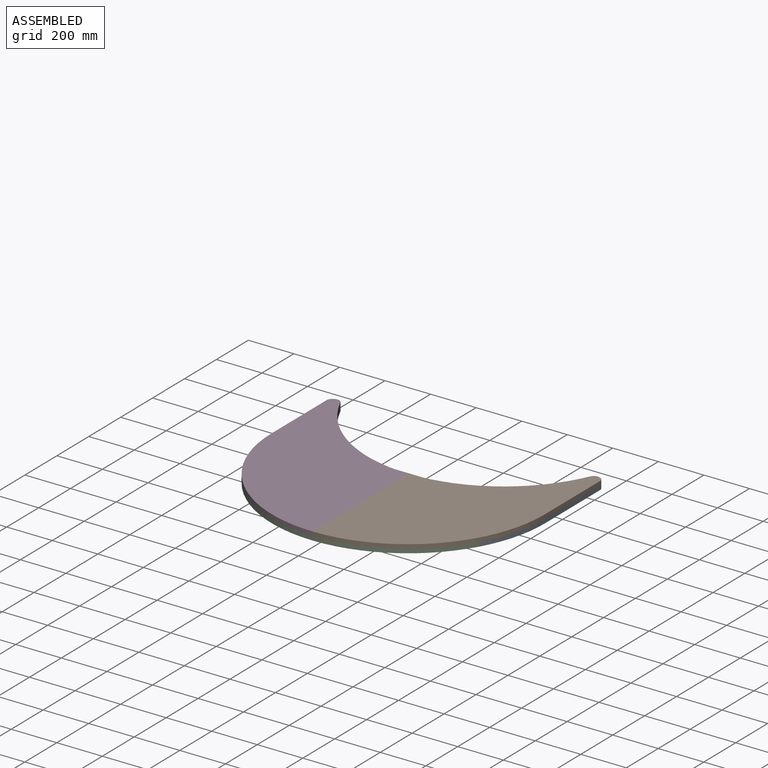
[diagram: assembled view]
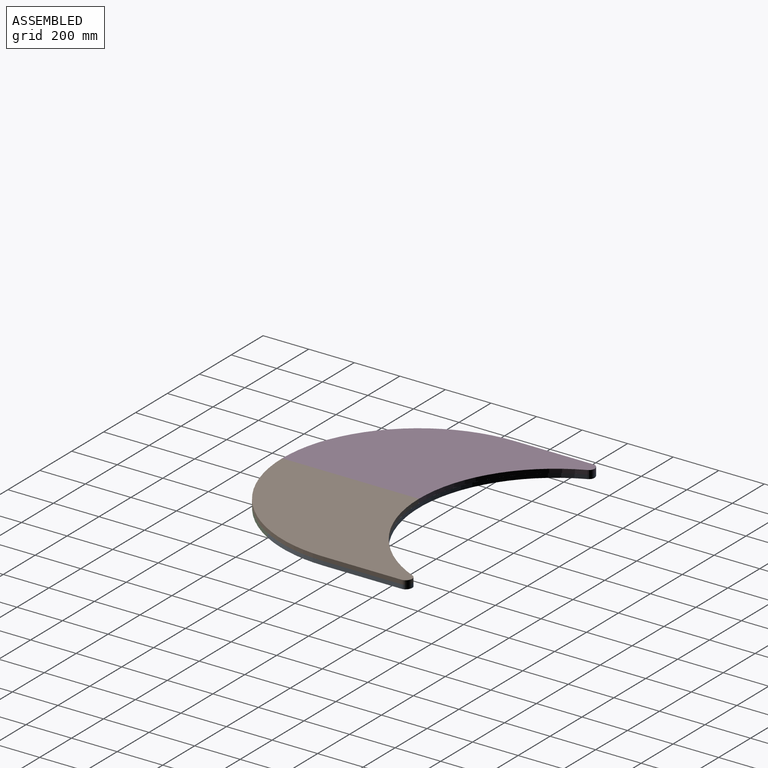
[diagram: assembled view, second angle]
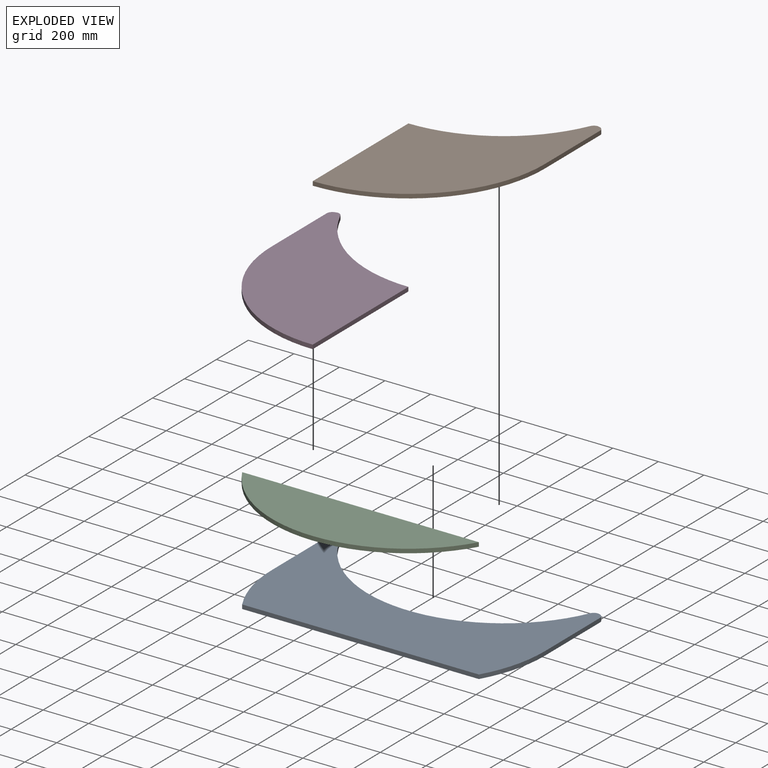
[diagram: exploded view]
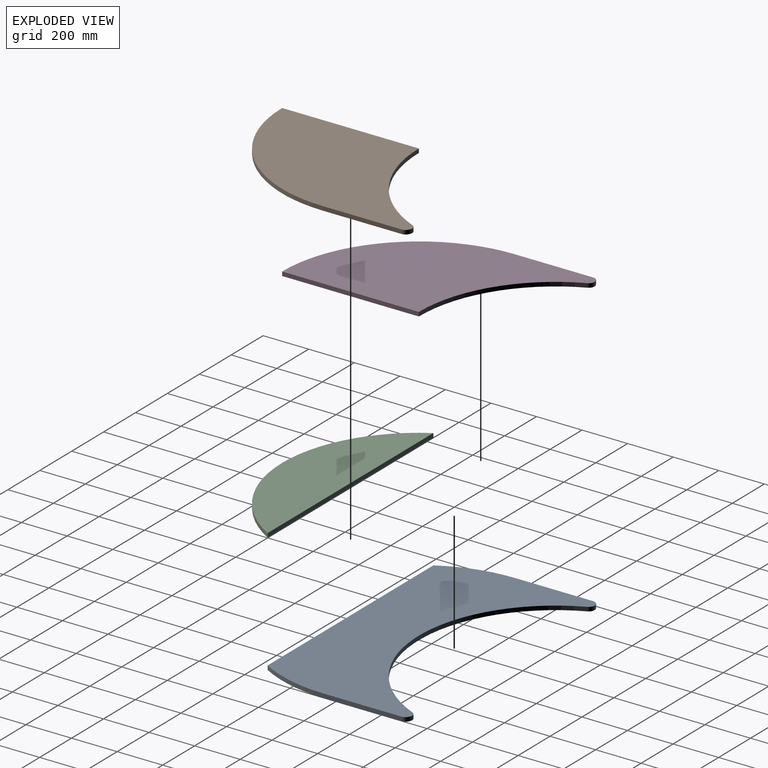
[diagram: exploded view, second angle]
ASSEMBLY  parts=4 mates=3
PART A: 14 faces, bbox 1200x671.4x18 mm
  f0: cylinder r=600mm len=300.21mm, axis (0,0,-1), area 5659.2mm2, adj f1,f11,f12,f13
  f1: plane 1038.99x18mm, normal (0,-1,0), area 18701.8mm2, adj f0,f2,f12,f13
  f2: cylinder r=600mm len=300.21mm, axis (0,0,-1), area 5659.2mm2, adj f1,f3,f12,f13
  f3: plane 344.69x18mm, normal (1,0,0), area 6204.5mm2, adj f2,f4,f12,f13
  f4: cylinder r=25mm len=23.23mm, axis (0,0,-1), area 536.7mm2, adj f3,f5,f12,f13
  f5: plane 18x3.84mm, normal (0.37,0.93,0), area 74.4mm2, adj f4,f6,f12,f13
  f6: cylinder r=25mm len=32.08mm, axis (0,0,-1), area 688.9mm2, adj f5,f7,f12,f13
  f7: cylinder r=600mm len=1096.62mm, axis (0,0,-1), area 24897.7mm2, adj f6,f8,f12,f13
  f8: cylinder r=25mm len=32.08mm, axis (0,0,-1), area 688.9mm2, adj f7,f9,f12,f13
  f9: plane 18x3.84mm, normal (-0.37,0.93,0), area 74.4mm2, adj f8,f10,f12,f13
  f10: cylinder r=25mm len=23.23mm, axis (0,0,-1), area 536.7mm2, adj f9,f11,f12,f13
  f11: plane 344.69x18mm, normal (-1,0,0), area 6204.5mm2, adj f0,f10,f12,f13
  f12: plane 1200x671.43mm, normal (0,0,1), area 491876mm2, adj f0,f1,f2,f3,f4,f5,f6,f7
  f13: plane 1200x671.43mm, normal (0,0,-1), area 491876mm2, adj f0,f1,f2,f3,f4,f5,f6,f7
PART B: 9 faces, bbox 600x971.2x18 mm
  f0: cylinder r=600mm len=548.31mm, axis (0,0,-1), area 12448.8mm2, adj f1,f6,f7,f8
  f1: plane 600x18mm, normal (-1,0,0), area 10800mm2, adj f0,f2,f7,f8
  f2: cylinder r=600mm len=600mm, axis (0,0,-1), area 16964.6mm2, adj f1,f3,f7,f8
  f3: plane 344.69x18mm, normal (1,0,0), area 6204.5mm2, adj f2,f4,f7,f8
  f4: cylinder r=25mm len=23.23mm, axis (0,0,-1), area 536.7mm2, adj f3,f5,f7,f8
  f5: plane 18x3.84mm, normal (0.37,0.93,0), area 74.4mm2, adj f4,f6,f7,f8
  f6: cylinder r=25mm len=32.08mm, axis (0,0,-1), area 688.9mm2, adj f0,f5,f7,f8
  f7: plane 971.22x600mm, normal (0,0,1), area 356382mm2, adj f0,f1,f2,f3,f4,f5,f6
  f8: plane 971.22x600mm, normal (0,0,-1), area 356382mm2, adj f0,f1,f2,f3,f4,f5,f6
PART C: 4 faces, bbox 1039x299.8x18 mm
  f0: cylinder r=600mm len=1038.99mm, axis (0,0,-1), area 22610.7mm2, adj f1,f2,f3
  f1: plane 1038.99x18mm, normal (0,1,0), area 18701.8mm2, adj f0,f2,f3
  f2: plane 1038.99x299.79mm, normal (0,0,1), area 220888.1mm2, adj f0,f1
  f3: plane 1038.99x299.79mm, normal (0,0,-1), area 220888.1mm2, adj f0,f1
PART D: 9 faces, bbox 600x971.2x18 mm
  f0: cylinder r=600mm len=600mm, axis (0,0,-1), area 16964.6mm2, adj f1,f6,f7,f8
  f1: plane 600x18mm, normal (1,0,0), area 10800mm2, adj f0,f2,f7,f8
  f2: cylinder r=600mm len=548.31mm, axis (0,0,-1), area 12448.8mm2, adj f1,f3,f7,f8
  f3: cylinder r=25mm len=32.08mm, axis (0,0,-1), area 688.9mm2, adj f2,f4,f7,f8
  f4: plane 18x3.84mm, normal (-0.37,0.93,0), area 74.4mm2, adj f3,f5,f7,f8
  f5: cylinder r=25mm len=23.23mm, axis (0,0,-1), area 536.7mm2, adj f4,f6,f7,f8
  f6: plane 344.69x18mm, normal (-1,0,0), area 6204.5mm2, adj f0,f5,f7,f8
  f7: plane 971.22x600mm, normal (0,0,1), area 356382mm2, adj f0,f1,f2,f3,f4,f5,f6
  f8: plane 971.22x600mm, normal (0,0,-1), area 356382mm2, adj f0,f1,f2,f3,f4,f5,f6
PLACE A t=(-358.16,573.57,-413.63)mm
PLACE B t=(-358.16,573.57,-395.63)mm
PLACE C t=(-358.16,573.57,-413.63)mm
PLACE D t=(-358.16,573.57,-395.63)mm
MATE fastened B.f8 <-> A.f12  axis (0,0,-1) through (241.84,318.26,-395.63)mm
MATE fastened A.f1 <-> C.f1  axis (0,-1,0) through (-358.16,-326.64,-404.63)mm
MATE fastened D.f8 <-> A.f12  axis (0,0,-1) through (-958.16,318.26,-395.63)mm
